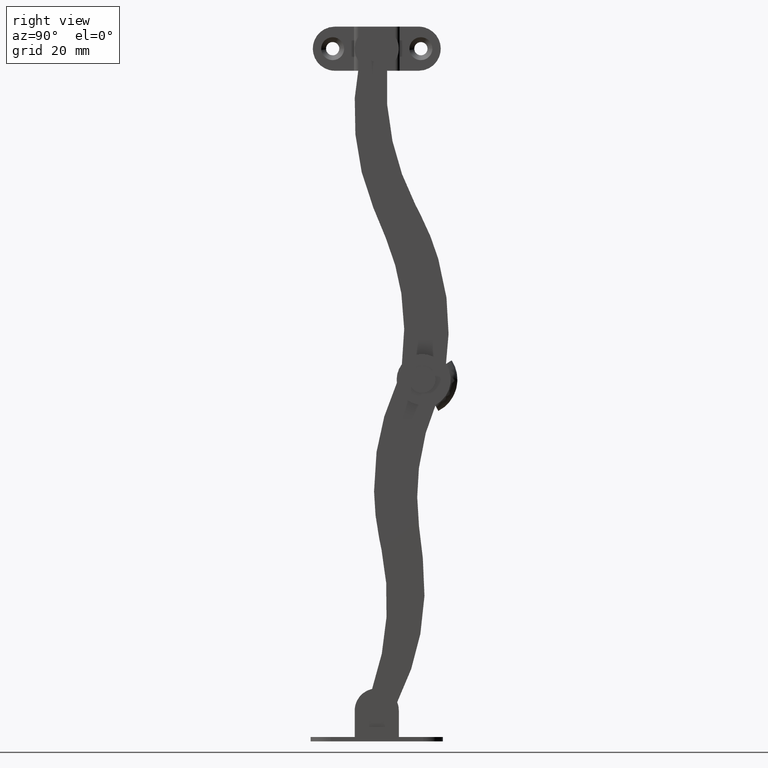
[diagram: clean part render]
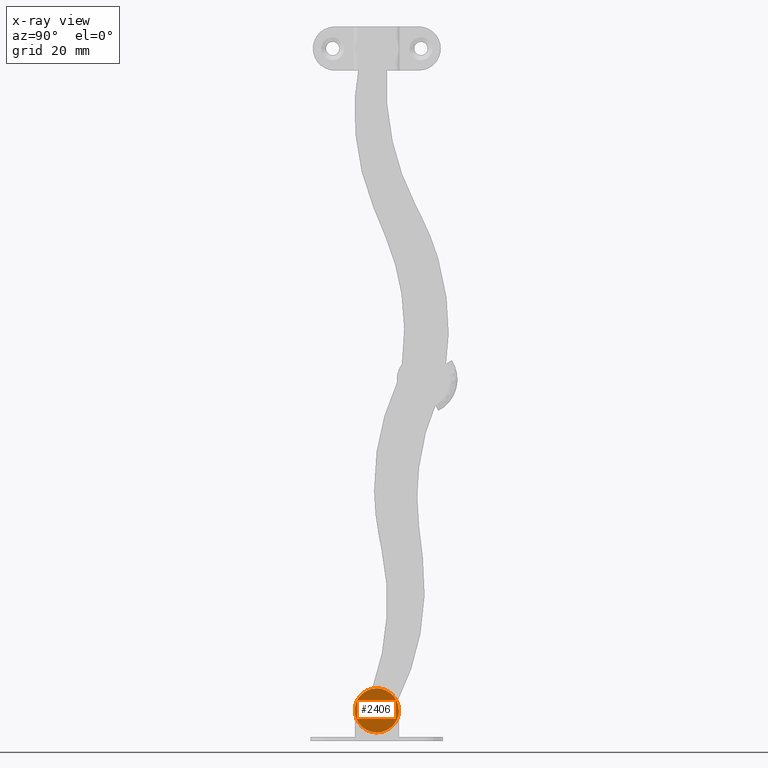
[diagram: x-ray — body ghosted, one internal face saturated and labeled with its STEP entity id]
A machine part, right view, then the same camera in x-ray: the body is ghosted and one INTERNAL B-rep face — a face not visible from any outside direction — is saturated and labeled: STEP entity #2406.
In plain terms, the highlighted face is a freeform B-spline surface patch.
Its self-contained STEP definition (entity closure, byte-faithful):
#2043=CARTESIAN_POINT('',(5.0,8.781328710519759,0.177051352535859));
#2044=VERTEX_POINT('',#2043);
#2045=CARTESIAN_POINT('',(5.0,10.270842999999800,-1.499999999999999));
#2046=VERTEX_POINT('',#2045);
#2047=CARTESIAN_POINT('',(5.0,8.781328710519759,0.177051352535859));
#2048=CARTESIAN_POINT('',(4.999999999999999,8.770842999999797,0.088836180034409));
#2049=CARTESIAN_POINT('',(5.0,8.770842999999799,6.288870E-016));
#2050=CARTESIAN_POINT('',(5.000000000000001,8.770842999999799,-1.500000000000000));
#2051=CARTESIAN_POINT('',(5.0,10.270842999999800,-1.499999999999999));
#2059=(BOUNDED_CURVE()B_SPLINE_CURVE(2,(#2047,#2048,#2049,#2050,#2051),.UNSPECIFIED.,.F.,.U.)B_SPLINE_CURVE_WITH_KNOTS((3,2,3),(0.229562473390673,0.250000000000000,0.500000000000000),.UNSPECIFIED.)CURVE()GEOMETRIC_REPRESENTATION_ITEM()RATIONAL_B_SPLINE_CURVE((0.956026753942936,0.976055948187234,1.0,0.707106781186548,1.0))REPRESENTATION_ITEM(''));
#2060=EDGE_CURVE('',#2044,#2046,#2059,.T.);
#2101=CARTESIAN_POINT('',(5.000000000000001,11.768045197543380,-0.091572810761034));
#2102=VERTEX_POINT('',#2101);
#2108=CARTESIAN_POINT('',(5.0,10.270842999999800,-1.499999999999999));
#2109=CARTESIAN_POINT('',(5.0,11.681902097603571,-1.499999999999999));
#2110=CARTESIAN_POINT('',(5.000000000000001,11.768045197543380,-0.091572810761034));
#2118=(BOUNDED_CURVE()B_SPLINE_CURVE(2,(#2108,#2109,#2110),.UNSPECIFIED.,.F.,.U.)B_SPLINE_CURVE_WITH_KNOTS((3,3),(0.500000000000000,0.739332961905738),.UNSPECIFIED.)CURVE()GEOMETRIC_REPRESENTATION_ITEM()RATIONAL_B_SPLINE_CURVE((1.0,0.719603993677084,0.976072040952597))REPRESENTATION_ITEM(''));
#2119=EDGE_CURVE('',#2046,#2102,#2118,.T.);
#2142=CARTESIAN_POINT('',(5.0,10.270842999999800,1.500000000000001));
#2143=VERTEX_POINT('',#2142);
#2144=CARTESIAN_POINT('',(5.0,10.270842999999800,1.500000000000001));
#2145=CARTESIAN_POINT('',(5.000000000000001,8.938581212064841,1.500000000000001));
#2146=CARTESIAN_POINT('',(5.0,8.781328710519759,0.177051352535859));
#2154=(BOUNDED_CURVE()B_SPLINE_CURVE(2,(#2144,#2145,#2146),.UNSPECIFIED.,.F.,.U.)B_SPLINE_CURVE_WITH_KNOTS((3,3),(0.0,0.229562473390673),.UNSPECIFIED.)CURVE()GEOMETRIC_REPRESENTATION_ITEM()RATIONAL_B_SPLINE_CURVE((1.0,0.731050832999314,0.956026753942936))REPRESENTATION_ITEM(''));
#2155=EDGE_CURVE('',#2143,#2044,#2154,.T.);
#2157=CARTESIAN_POINT('',(5.000000000000001,11.768045197543374,-0.091572810761034));
#2158=CARTESIAN_POINT('',(4.999999999999999,11.770842999999800,-0.045829146410722));
#2159=CARTESIAN_POINT('',(5.0,11.770842999999800,6.288870E-016));
#2160=CARTESIAN_POINT('',(5.000000000000001,11.770842999999799,1.500000000000001));
#2161=CARTESIAN_POINT('',(5.0,10.270842999999800,1.500000000000001));
#2169=(BOUNDED_CURVE()B_SPLINE_CURVE(2,(#2157,#2158,#2159,#2160,#2161),.UNSPECIFIED.,.F.,.U.)B_SPLINE_CURVE_WITH_KNOTS((3,2,3),(0.739332961905738,0.750000000000000,1.0),.UNSPECIFIED.)CURVE()GEOMETRIC_REPRESENTATION_ITEM()RATIONAL_B_SPLINE_CURVE((0.976072040952596,0.987502787509464,1.0,0.707106781186548,1.0))REPRESENTATION_ITEM(''));
#2170=EDGE_CURVE('',#2102,#2143,#2169,.T.);
#2225=CARTESIAN_POINT('',(5.0,10.270842999999800,5.000000000000001));
#2226=VERTEX_POINT('',#2225);
#2227=CARTESIAN_POINT('',(5.0,5.286256331355319,0.392295478908081));
#2228=VERTEX_POINT('',#2227);
#2229=CARTESIAN_POINT('',(5.0,10.270842999999800,5.000000000000001));
#2230=CARTESIAN_POINT('',(5.000000000000001,5.648890542208893,5.000000000000002));
#2231=CARTESIAN_POINT('',(5.0,5.286256331355319,0.392295478908081));
#2239=(BOUNDED_CURVE()B_SPLINE_CURVE(2,(#2229,#2230,#2231),.UNSPECIFIED.,.F.,.U.)B_SPLINE_CURVE_WITH_KNOTS((3,3),(0.0,0.236331300614275),.UNSPECIFIED.)CURVE()GEOMETRIC_REPRESENTATION_ITEM()RATIONAL_B_SPLINE_CURVE((1.0,0.723120658626862,0.969723356133224))REPRESENTATION_ITEM(''));
#2240=EDGE_CURVE('',#2226,#2228,#2239,.T.);
#2281=CARTESIAN_POINT('',(5.0,15.255429668644281,-0.392295478908081));
#2282=VERTEX_POINT('',#2281);
#2288=CARTESIAN_POINT('',(5.000000000000001,15.255429668644283,-0.392295478908081));
#2289=CARTESIAN_POINT('',(5.000000000000001,15.270842999999799,-0.196450535308450));
#2290=CARTESIAN_POINT('',(5.0,15.270842999999800,8.881784E-016));
#2291=CARTESIAN_POINT('',(5.000000000000001,15.270842999999800,5.000000000000002));
#2292=CARTESIAN_POINT('',(5.0,10.270842999999800,5.000000000000001));
#2300=(BOUNDED_CURVE()B_SPLINE_CURVE(2,(#2288,#2289,#2290,#2291,#2292),.UNSPECIFIED.,.F.,.U.)B_SPLINE_CURVE_WITH_KNOTS((3,2,3),(0.736331300614275,0.750000000000000,1.0),.UNSPECIFIED.)CURVE()GEOMETRIC_REPRESENTATION_ITEM()RATIONAL_B_SPLINE_CURVE((0.969723356133223,0.983986122559686,1.0,0.707106781186548,1.0))REPRESENTATION_ITEM(''));
#2301=EDGE_CURVE('',#2282,#2226,#2300,.T.);
#2324=CARTESIAN_POINT('',(5.0,10.270842999999800,-4.999999999999999));
#2325=VERTEX_POINT('',#2324);
#2326=CARTESIAN_POINT('',(5.0,5.286256331355320,0.392295478908081));
#2327=CARTESIAN_POINT('',(4.999999999999999,5.270842999999799,0.196450535308451));
#2328=CARTESIAN_POINT('',(5.0,5.270842999999799,8.881784E-016));
#2329=CARTESIAN_POINT('',(5.000000000000001,5.270842999999799,-4.999999999999998));
#2330=CARTESIAN_POINT('',(5.0,10.270842999999800,-4.999999999999999));
#2338=(BOUNDED_CURVE()B_SPLINE_CURVE(2,(#2326,#2327,#2328,#2329,#2330),.UNSPECIFIED.,.F.,.U.)B_SPLINE_CURVE_WITH_KNOTS((3,2,3),(0.236331300614275,0.250000000000000,0.500000000000000),.UNSPECIFIED.)CURVE()GEOMETRIC_REPRESENTATION_ITEM()RATIONAL_B_SPLINE_CURVE((0.969723356133223,0.983986122559686,1.0,0.707106781186548,1.0))REPRESENTATION_ITEM(''));
#2339=EDGE_CURVE('',#2228,#2325,#2338,.T.);
#2341=CARTESIAN_POINT('',(5.0,10.270842999999800,-4.999999999999999));
#2342=CARTESIAN_POINT('',(5.0,14.892795457790692,-4.999999999999999));
#2343=CARTESIAN_POINT('',(5.0,15.255429668644283,-0.392295478908081));
#2351=(BOUNDED_CURVE()B_SPLINE_CURVE(2,(#2341,#2342,#2343),.UNSPECIFIED.,.F.,.U.)B_SPLINE_CURVE_WITH_KNOTS((3,3),(0.500000000000000,0.736331300614274),.UNSPECIFIED.)CURVE()GEOMETRIC_REPRESENTATION_ITEM()RATIONAL_B_SPLINE_CURVE((1.0,0.723120658626862,0.969723356133223))REPRESENTATION_ITEM(''));
#2352=EDGE_CURVE('',#2325,#2282,#2351,.T.);
#2389=CARTESIAN_POINT('',(5.0,4.772869272093089,5.499499980618061));
#2390=CARTESIAN_POINT('',(5.0,15.768816280871670,5.499499980618061));
#2391=CARTESIAN_POINT('',(5.0,4.772869272093089,-5.499500248838960));
#2392=CARTESIAN_POINT('',(5.0,15.768816280871670,-5.499500248838960));
#2393=B_SPLINE_SURFACE_WITH_KNOTS('',1,1,((#2389,#2391),(#2390,#2392)),.UNSPECIFIED.,.F.,.F.,.U.,(2,2),(2,2),(0.0,10.995947008778581),(0.0,10.999000229457019),.UNSPECIFIED.);
#2394=ORIENTED_EDGE('',*,*,#2301,.F.);
#2395=ORIENTED_EDGE('',*,*,#2352,.F.);
#2396=ORIENTED_EDGE('',*,*,#2339,.F.);
#2397=ORIENTED_EDGE('',*,*,#2240,.F.);
#2398=EDGE_LOOP('',(#2394,#2395,#2396,#2397));
#2399=FACE_OUTER_BOUND('',#2398,.T.);
#2400=ORIENTED_EDGE('',*,*,#2119,.T.);
#2401=ORIENTED_EDGE('',*,*,#2170,.T.);
#2402=ORIENTED_EDGE('',*,*,#2155,.T.);
#2403=ORIENTED_EDGE('',*,*,#2060,.T.);
#2404=EDGE_LOOP('',(#2400,#2401,#2402,#2403));
#2405=FACE_BOUND('',#2404,.T.);
#2406=ADVANCED_FACE('',(#2399,#2405),#2393,.T.);